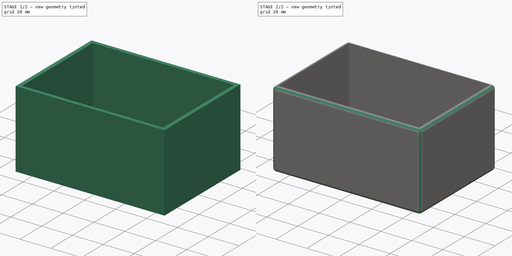
[diagram: build sequence overview — one tinted view per stage of 2, left to right]
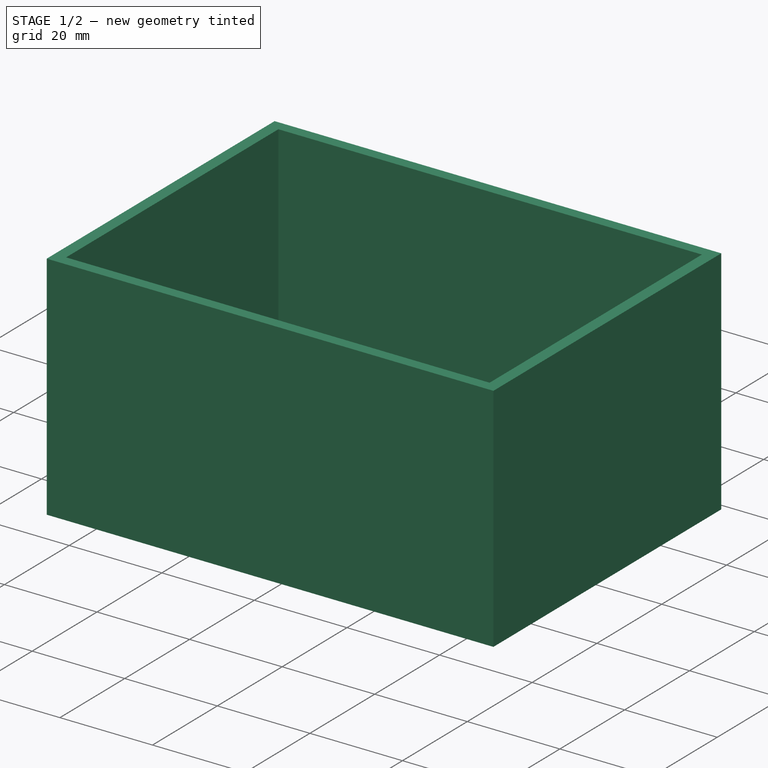
[diagram: stage 1 of 2 — iso view after this stage's code; geometry added in this stage tinted green]
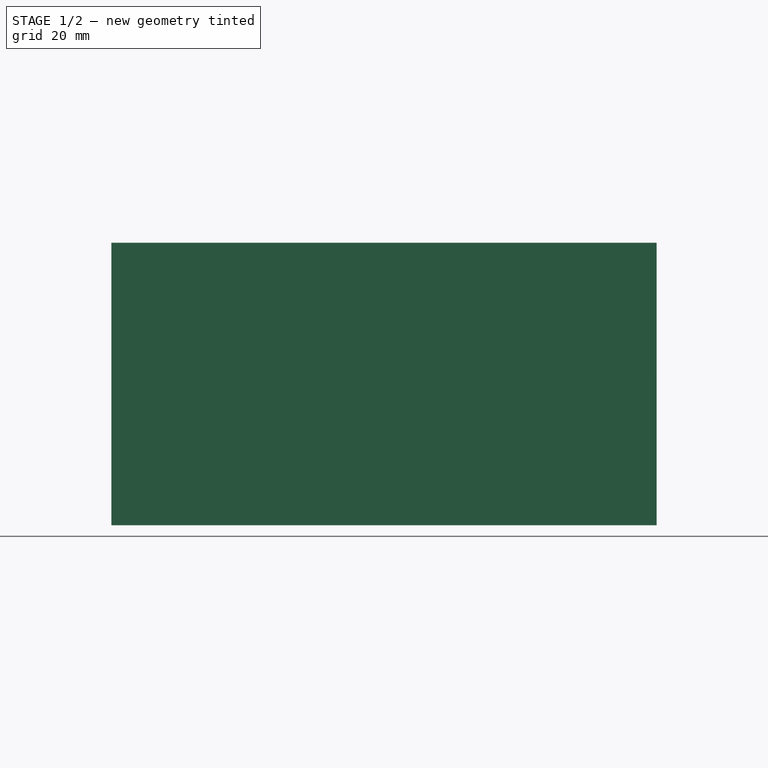
[diagram: stage 1 of 2 — front view after this stage's code; geometry added in this stage tinted green]
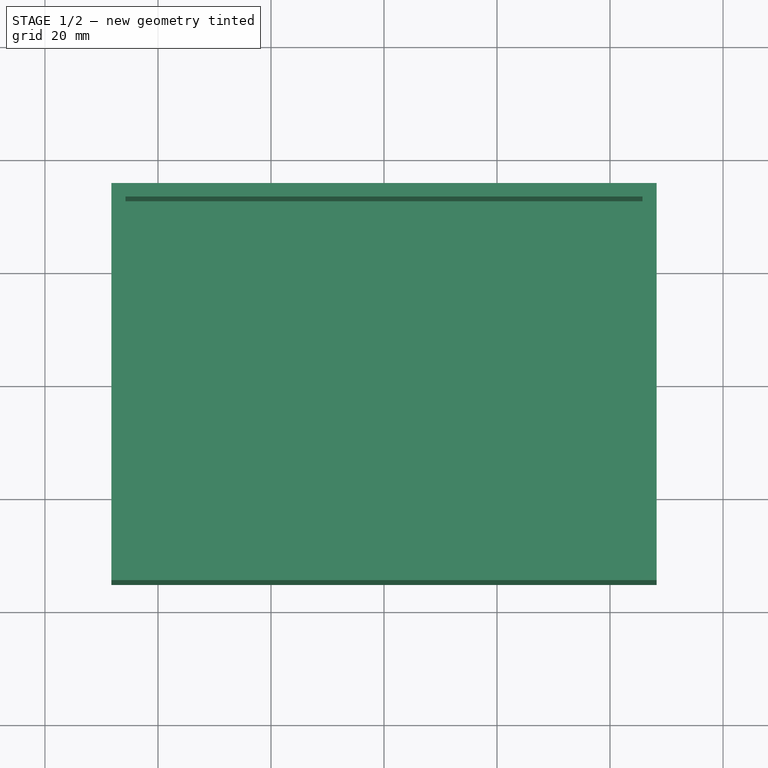
[diagram: stage 1 of 2 — top view after this stage's code; geometry added in this stage tinted green]
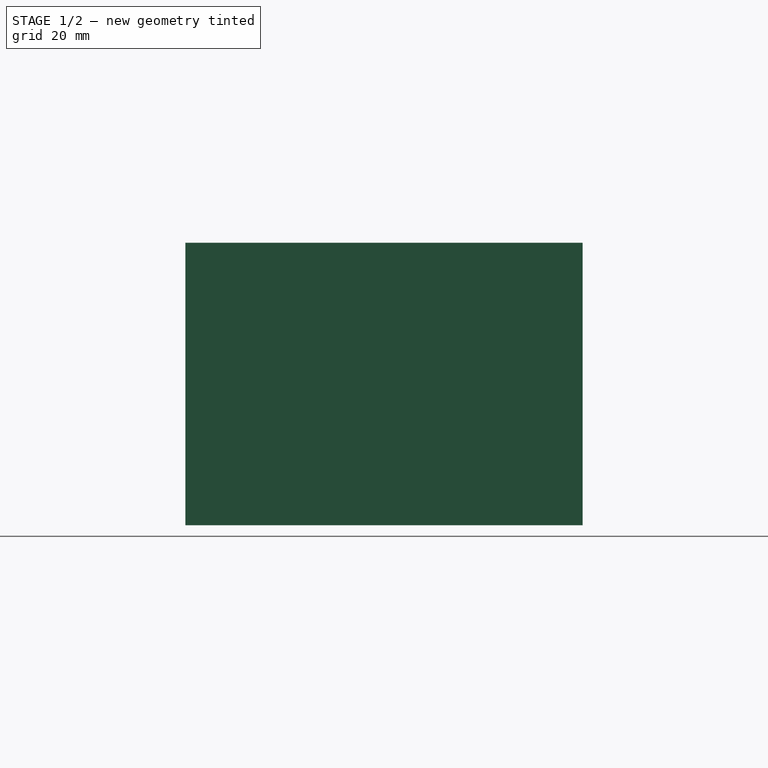
[diagram: stage 1 of 2 — right view after this stage's code; geometry added in this stage tinted green]
FCSTD DOCUMENT  (FreeCAD 0.16R6557 (Git))
Label: BodyCover
License: CreativeCommons Attribution-ShareAlike
LicenseURL: http://creativecommons.org/licenses/by-sa/4.0/
objects: Sketcher::SketchObject×2, PartDesign::Pad×1, PartDesign::Pocket×1, PartDesign::Fillet×1, App::DocumentObjectGroup×1, Part::Feature×1
note: 8 computed .brp shape members not serialized (recipe doc carries the construction recipe); baked Part::Feature solids carry a one-line shape summary decoded from their .brp

FEATURE [Sketcher::SketchObject] Sketch  label="CoverBaseSketch"
  sketch-geometry (4):
    g0: LineSegment StartX=48.25 StartY=35.15 StartZ=0 EndX=-48.25 EndY=35.15 EndZ=0
    g1: LineSegment StartX=-48.25 StartY=35.15 StartZ=0 EndX=-48.25 EndY=-35.15 EndZ=0
    g2: LineSegment StartX=-48.25 StartY=-35.15 StartZ=0 EndX=48.25 EndY=-35.15 EndZ=0
    g3: LineSegment StartX=48.25 StartY=-35.15 StartZ=0 EndX=48.25 EndY=35.15 EndZ=0
  constraints (12):
    c: Coincident(g0,g1)
    c: Coincident(g1,g2)
    c: Coincident(g2,g3)
    c: Coincident(g3,g0)
    c: Horizontal(g0)
    c: Horizontal(g2)
    c: Vertical(g1)
    c: Vertical(g3)
    c: Symmetric(g0,g0,g-2)
    c: Symmetric(g0,g1,g-1)
    c: DistanceX(g0) = -96.5
    c: DistanceY(g3) = 70.3
FEATURE [PartDesign::Pad] Pad  label="CoverBodyBase"
  Length = 50
  Length2 = 100
  Sketch = -> Sketch
  Type = 0
FEATURE [Sketcher::SketchObject] Sketch001  label="CoverBasePocketSketch"
  Placement = pos=(0,0,50) rot=(0,0,1;0rad)
  Support = -> Pad [Face6]
  sketch-geometry (4):
    g0: LineSegment StartX=45.75 StartY=-32.75 StartZ=0 EndX=-45.75 EndY=-32.75 EndZ=0
    g1: LineSegment StartX=-45.75 StartY=-32.75 StartZ=0 EndX=-45.75 EndY=32.75 EndZ=0
    g2: LineSegment StartX=-45.75 StartY=32.75 StartZ=0 EndX=45.75 EndY=32.75 EndZ=0
    g3: LineSegment StartX=45.75 StartY=32.75 StartZ=0 EndX=45.75 EndY=-32.75 EndZ=0
  constraints (12):
    c: Coincident(g0,g1)
    c: Coincident(g1,g2)
    c: Coincident(g2,g3)
    c: Coincident(g3,g0)
    c: Horizontal(g0)
    c: Horizontal(g2)
    c: Vertical(g1)
    c: Vertical(g3)
    c: DistanceX(g0) = -91.5
    c: DistanceY(g1) = 65.5
    c: Symmetric(g1,g2,g-2)
    c: Symmetric(g1,g0,g-1)
FEATURE [PartDesign::Pocket] Pocket  label="CoverBody"
  Length = 48
  Sketch = -> Sketch001
  Type = 0
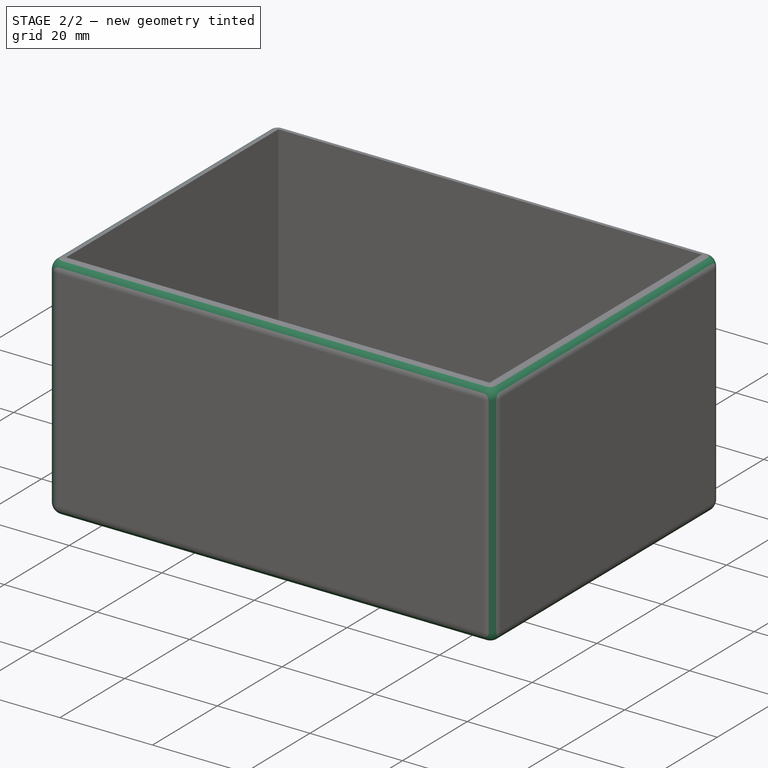
[diagram: stage 2 of 2 — iso view after this stage's code; geometry added in this stage tinted green]
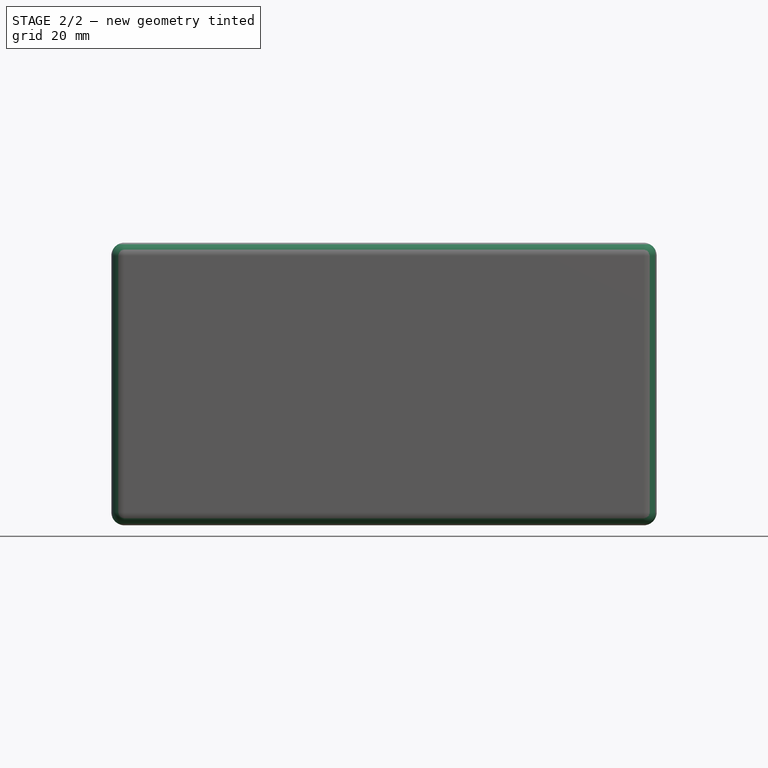
[diagram: stage 2 of 2 — front view after this stage's code; geometry added in this stage tinted green]
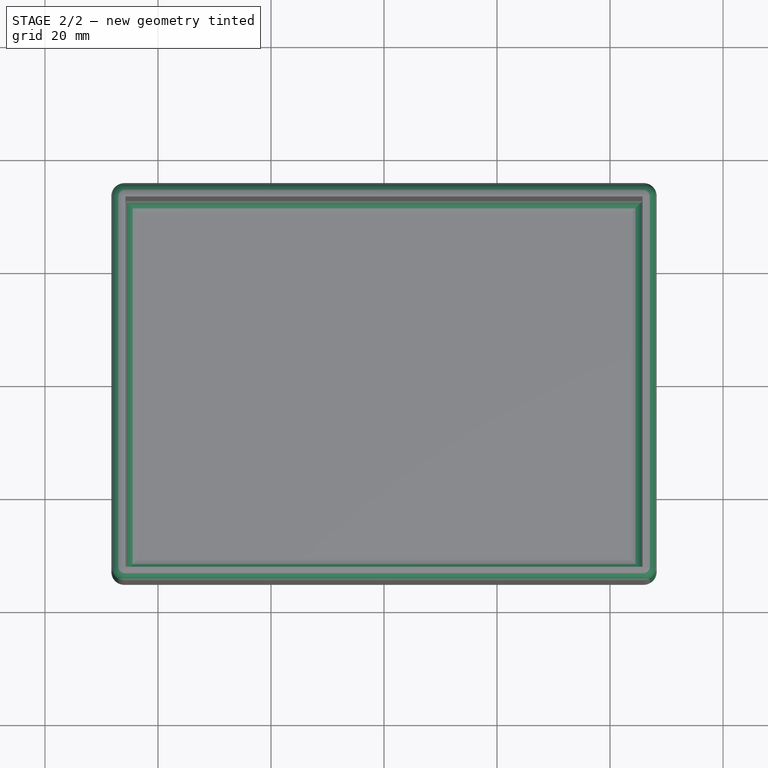
[diagram: stage 2 of 2 — top view after this stage's code; geometry added in this stage tinted green]
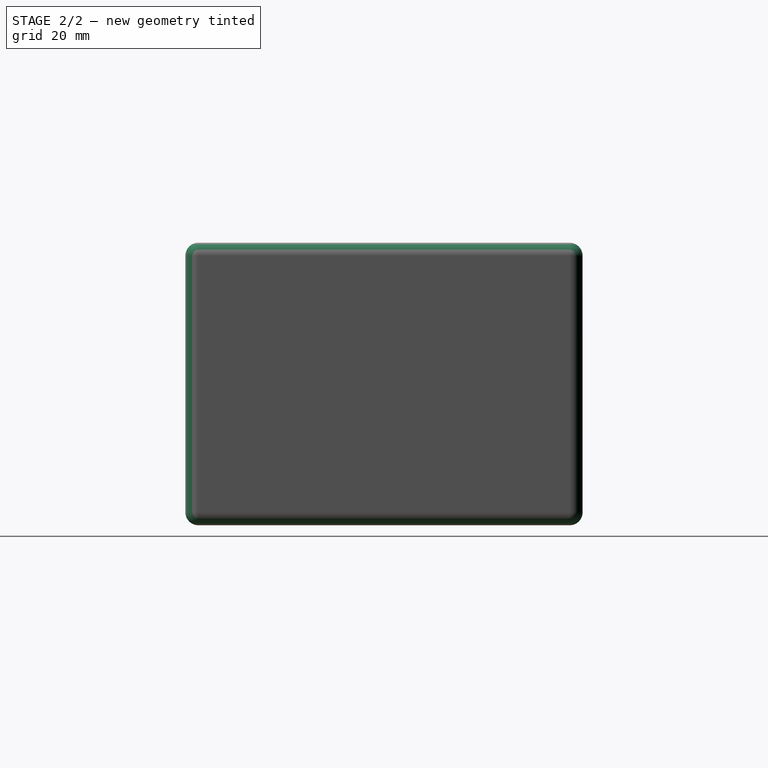
[diagram: stage 2 of 2 — right view after this stage's code; geometry added in this stage tinted green]
FEATURE [PartDesign::Fillet] Fillet  label="ExternalFillet"
  Base = -> Pocket [Edge3,Edge9,Edge11,Edge6,Edge5,Edge1,Edge7,Edge2,Edge4,Edge8,Edge10,Edge12,Edge18,Edge20,Edge22,Edge24]
  Radius = 2.3
FEATURE [App::DocumentObjectGroup] Group  label="Steps"
  Group = -> [Pocket,Pad,Fillet]
FEATURE [Part::Feature] Fillet001  label="BodyCover"
  shape: bbox 96.5 x 70.3 x 50 mm, 35 faces (baked)
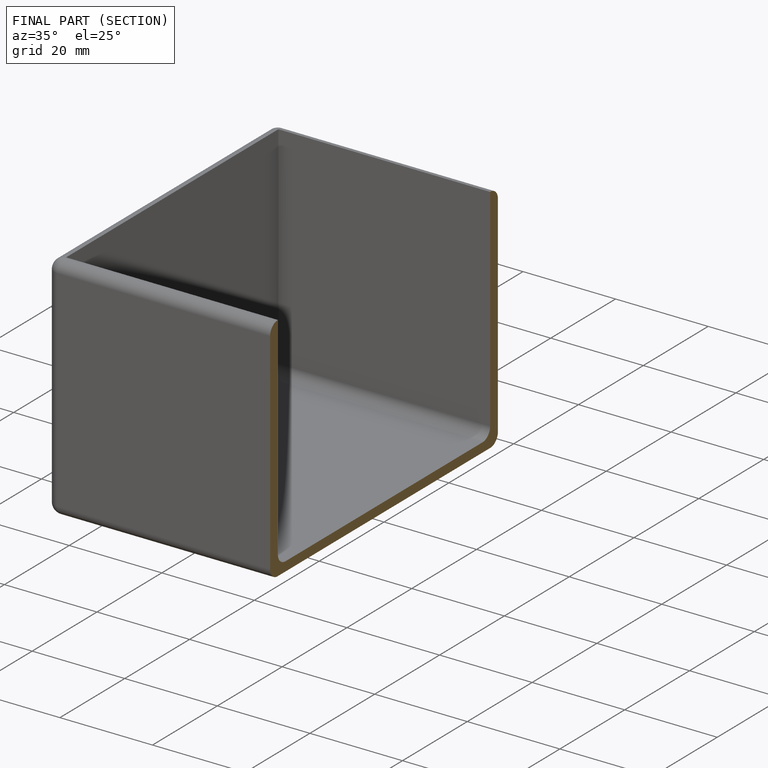
[diagram: finished part — half-section view (interior)]
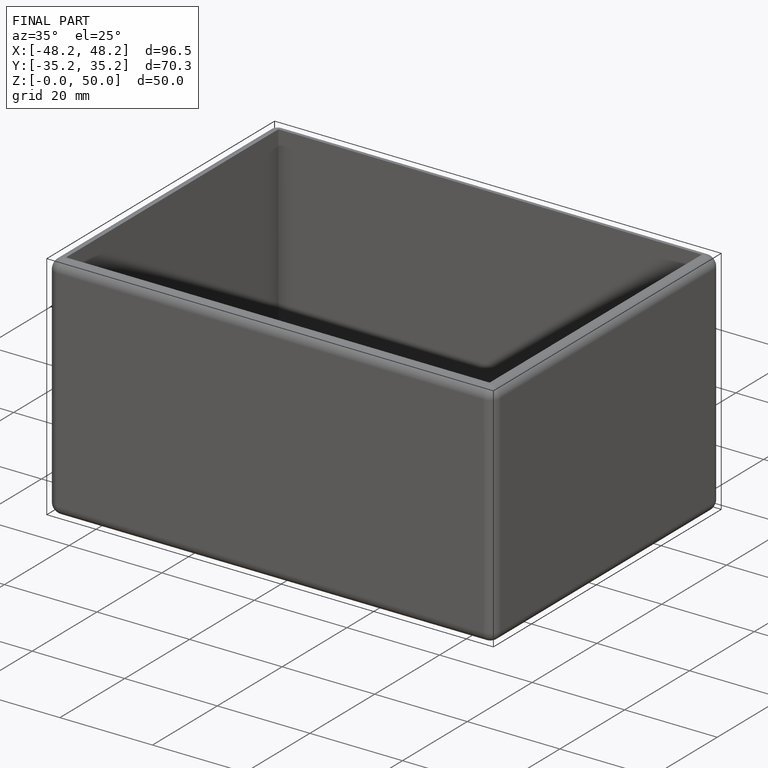
[diagram: finished part — iso view with bounding-box wireframe]
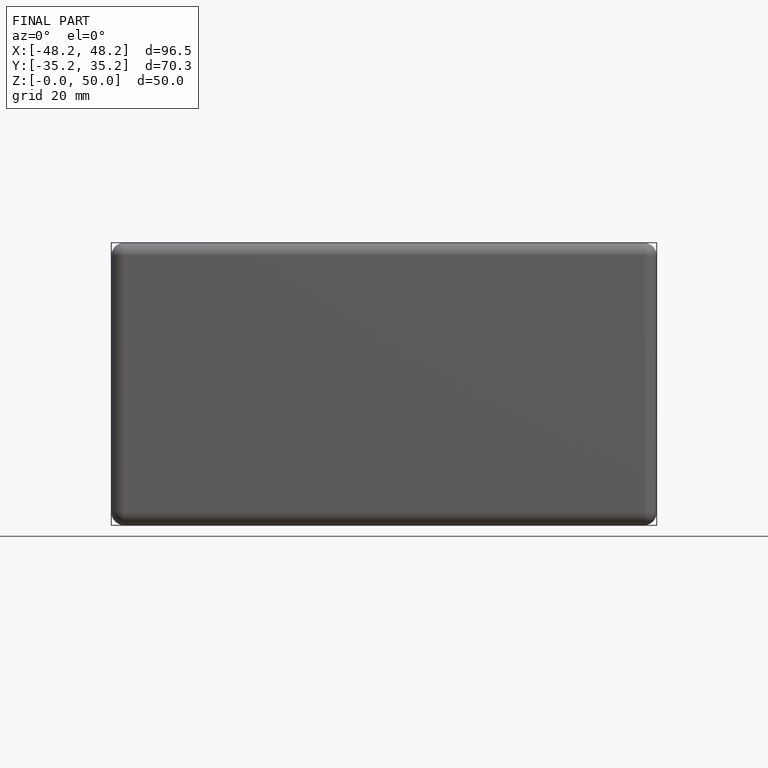
[diagram: finished part — front view with bounding-box wireframe]
